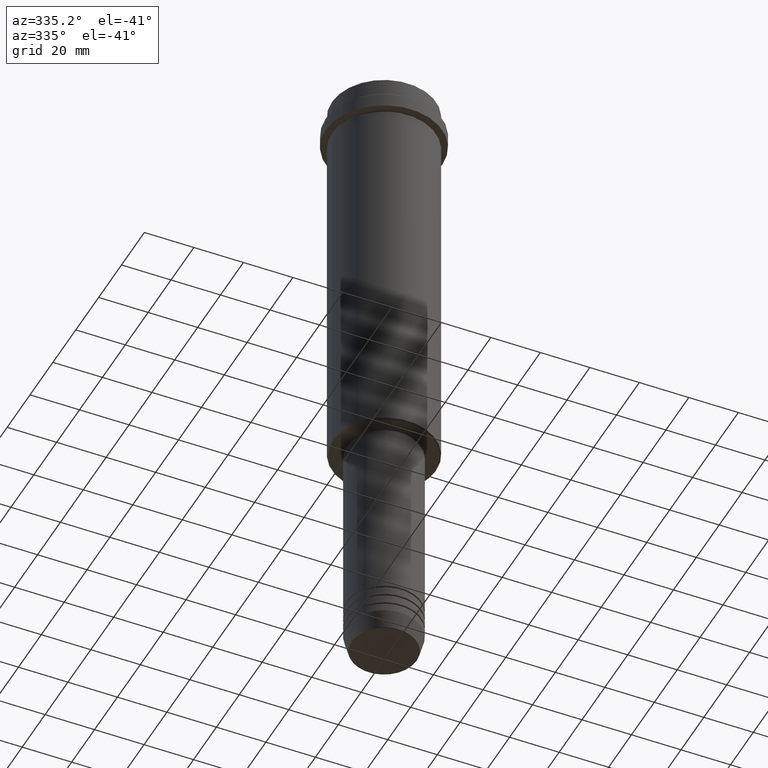
[diagram: clean part render]
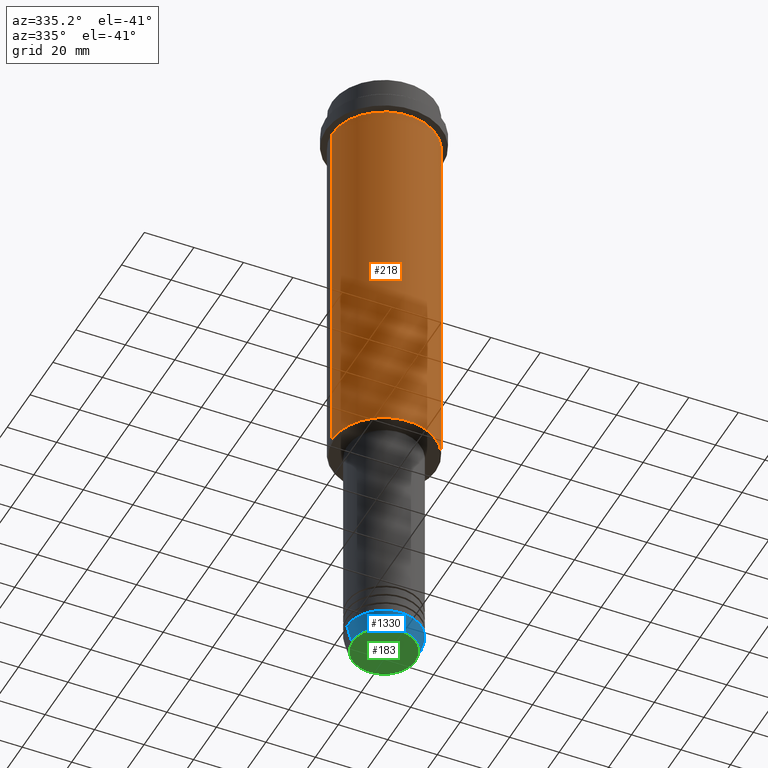
[diagram: same view with three faces highlighted in distinct colors, each labeled with its STEP entity id]
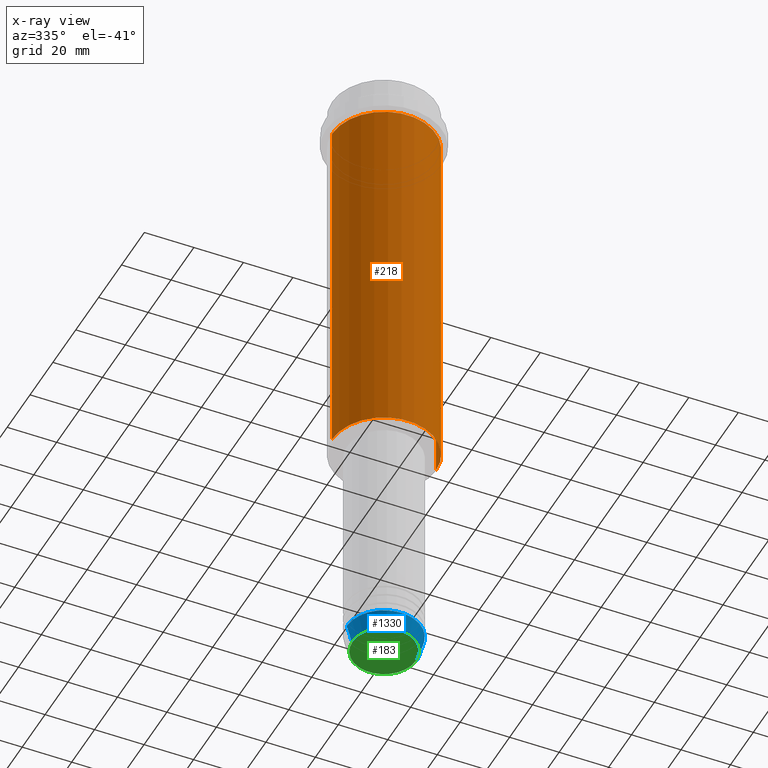
[diagram: x-ray of the same camera — body ghosted, the three highlighted faces saturated]
A machine part, auxiliary view with three faces highlighted in distinct colors.
The next image is the same camera in x-ray (body ghosted, the three faces saturated) — at least one of them is partly hidden behind the body in this view.
Their STEP definitions:

[orange] entity #218 — the highlighted cylindrical surface (partial cylindrical patch) has radius 21 mm, axis along (-0, -0, 1).
#16 = AXIS2_PLACEMENT_3D ( 'NONE', #1121, #705, #1228 ) ;
#28 = CARTESIAN_POINT ( 'NONE',  ( 0.000000000000000000, 0.000000000000000000, -16.00000000000000355 ) ) ;
#94 = ORIENTED_EDGE ( 'NONE', *, *, #1371, .T. ) ;
#137 = CARTESIAN_POINT ( 'NONE',  ( 20.99999999999999645, 0.000000000000000000, -16.00000000000000355 ) ) ;
#218 = ADVANCED_FACE ( 'NONE', ( #570 ), #1003, .T. ) ;
#247 = DIRECTION ( 'NONE',  ( -0.000000000000000000, -0.000000000000000000, 1.000000000000000000 ) ) ;
#287 = EDGE_CURVE ( 'NONE', #1183, #753, #288, .T. ) ;
#288 = CIRCLE ( 'NONE', #757, 20.99999999999999645 ) ;
#306 = LINE ( 'NONE', #730, #568 ) ;
#334 = ORIENTED_EDGE ( 'NONE', *, *, #1323, .T. ) ;
#362 = CARTESIAN_POINT ( 'NONE',  ( 20.99999999999999645, 0.000000000000000000, 0.000000000000000000 ) ) ;
#529 = ORIENTED_EDGE ( 'NONE', *, *, #287, .F. ) ;
#568 = VECTOR ( 'NONE', #968, 1000.000000000000000 ) ;
#570 = FACE_OUTER_BOUND ( 'NONE', #751, .T. ) ;
#581 = DIRECTION ( 'NONE',  ( -0.000000000000000000, -0.000000000000000000, 1.000000000000000000 ) ) ;
#592 = CIRCLE ( 'NONE', #16, 20.99999999999999645 ) ;
#609 = LINE ( 'NONE', #362, #1062 ) ;
#668 = CARTESIAN_POINT ( 'NONE',  ( 0.000000000000000000, 0.000000000000000000, 0.000000000000000000 ) ) ;
#689 = DIRECTION ( 'NONE',  ( 1.000000000000000000, 0.000000000000000000, 0.000000000000000000 ) ) ;
#705 = DIRECTION ( 'NONE',  ( -0.000000000000000000, -0.000000000000000000, 1.000000000000000000 ) ) ;
#730 = CARTESIAN_POINT ( 'NONE',  ( -20.99999999999999645, 2.571758278209441267E-15, 0.000000000000000000 ) ) ;
#751 = EDGE_LOOP ( 'NONE', ( #1400, #94, #334, #529 ) ) ;
#753 = VERTEX_POINT ( 'NONE', #137 ) ;
#757 = AXIS2_PLACEMENT_3D ( 'NONE', #28, #247, #1012 ) ;
#787 = CARTESIAN_POINT ( 'NONE',  ( -20.99999999999999645, 2.571758278209441267E-15, -16.00000000000000355 ) ) ;
#804 = CARTESIAN_POINT ( 'NONE',  ( 20.99999999999999645, 0.000000000000000000, -164.5000000000000284 ) ) ;
#828 = VERTEX_POINT ( 'NONE', #804 ) ;
#880 = DIRECTION ( 'NONE',  ( -0.000000000000000000, -0.000000000000000000, 1.000000000000000000 ) ) ;
#918 = CARTESIAN_POINT ( 'NONE',  ( -20.99999999999999645, 2.571758278209441267E-15, -164.5000000000000284 ) ) ;
#968 = DIRECTION ( 'NONE',  ( -0.000000000000000000, -0.000000000000000000, 1.000000000000000000 ) ) ;
#1003 = CYLINDRICAL_SURFACE ( 'NONE', #1317, 20.99999999999999645 ) ;
#1012 = DIRECTION ( 'NONE',  ( 1.000000000000000000, 0.000000000000000000, 0.000000000000000000 ) ) ;
#1013 = EDGE_CURVE ( 'NONE', #1287, #1183, #306, .T. ) ;
#1062 = VECTOR ( 'NONE', #581, 1000.000000000000000 ) ;
#1121 = CARTESIAN_POINT ( 'NONE',  ( 0.000000000000000000, 0.000000000000000000, -164.5000000000000284 ) ) ;
#1183 = VERTEX_POINT ( 'NONE', #787 ) ;
#1228 = DIRECTION ( 'NONE',  ( -1.000000000000000000, 0.000000000000000000, 0.000000000000000000 ) ) ;
#1287 = VERTEX_POINT ( 'NONE', #918 ) ;
#1317 = AXIS2_PLACEMENT_3D ( 'NONE', #668, #880, #689 ) ;
#1323 = EDGE_CURVE ( 'NONE', #828, #753, #609, .T. ) ;
#1371 = EDGE_CURVE ( 'NONE', #1287, #828, #592, .T. ) ;
#1400 = ORIENTED_EDGE ( 'NONE', *, *, #1013, .F. ) ;

[blue] entity #1330 — the highlighted conical surface has half-angle 15 deg.
#30 = ORIENTED_EDGE ( 'NONE', *, *, #202, .T. ) ;
#60 = CONICAL_SURFACE ( 'NONE', #265, 15.00000000000000000, 0.2617993877991500740 ) ;
#90 = CARTESIAN_POINT ( 'NONE',  ( 0.000000000000000000, 0.000000000000000000, -253.0000000000000000 ) ) ;
#107 = AXIS2_PLACEMENT_3D ( 'NONE', #651, #1160, #978 ) ;
#194 = AXIS2_PLACEMENT_3D ( 'NONE', #90, #1286, #280 ) ;
#202 = EDGE_CURVE ( 'NONE', #539, #388, #1338, .T. ) ;
#238 = LINE ( 'NONE', #579, #865 ) ;
#263 = DIRECTION ( 'NONE',  ( -0.000000000000000000, -0.000000000000000000, 1.000000000000000000 ) ) ;
#265 = AXIS2_PLACEMENT_3D ( 'NONE', #810, #263, #379 ) ;
#269 = CARTESIAN_POINT ( 'NONE',  ( 13.22365507213718772, 0.000000000000000000, -259.6294095225513274 ) ) ;
#280 = DIRECTION ( 'NONE',  ( 1.000000000000000000, 0.000000000000000000, 0.000000000000000000 ) ) ;
#325 = EDGE_CURVE ( 'NONE', #539, #938, #238, .T. ) ;
#379 = DIRECTION ( 'NONE',  ( 1.000000000000000000, 0.000000000000000000, 0.000000000000000000 ) ) ;
#388 = VERTEX_POINT ( 'NONE', #269 ) ;
#408 = VERTEX_POINT ( 'NONE', #1127 ) ;
#466 = DIRECTION ( 'NONE',  ( -0.2588190451025213501, 3.169619151431772337E-17, 0.9659258262890680902 ) ) ;
#516 = CARTESIAN_POINT ( 'NONE',  ( -13.22365507213718772, 1.728200442216588386E-15, -259.6294095225513274 ) ) ;
#539 = VERTEX_POINT ( 'NONE', #516 ) ;
#579 = CARTESIAN_POINT ( 'NONE',  ( -15.00000000000000000, 1.836970198721029589E-15, -253.0000000000000000 ) ) ;
#590 = CIRCLE ( 'NONE', #194, 15.00000000000000000 ) ;
#597 = DIRECTION ( 'NONE',  ( 0.2588190451025213501, 0.000000000000000000, 0.9659258262890680902 ) ) ;
#651 = CARTESIAN_POINT ( 'NONE',  ( 0.000000000000000000, 0.000000000000000000, -259.6294095225513274 ) ) ;
#696 = CARTESIAN_POINT ( 'NONE',  ( 15.00000000000000000, 0.000000000000000000, -253.0000000000000000 ) ) ;
#712 = ORIENTED_EDGE ( 'NONE', *, *, #325, .F. ) ;
#810 = CARTESIAN_POINT ( 'NONE',  ( 0.000000000000000000, 0.000000000000000000, -253.0000000000000000 ) ) ;
#865 = VECTOR ( 'NONE', #466, 1000.000000000000000 ) ;
#914 = FACE_OUTER_BOUND ( 'NONE', #1248, .T. ) ;
#916 = CARTESIAN_POINT ( 'NONE',  ( -15.00000000000000000, 1.836970198721029589E-15, -253.0000000000000000 ) ) ;
#938 = VERTEX_POINT ( 'NONE', #916 ) ;
#978 = DIRECTION ( 'NONE',  ( 1.000000000000000000, 0.000000000000000000, 0.000000000000000000 ) ) ;
#980 = EDGE_CURVE ( 'NONE', #938, #408, #590, .T. ) ;
#1046 = ORIENTED_EDGE ( 'NONE', *, *, #980, .F. ) ;
#1127 = CARTESIAN_POINT ( 'NONE',  ( 15.00000000000000000, 0.000000000000000000, -253.0000000000000000 ) ) ;
#1160 = DIRECTION ( 'NONE',  ( -0.000000000000000000, -0.000000000000000000, 1.000000000000000000 ) ) ;
#1199 = ORIENTED_EDGE ( 'NONE', *, *, #1274, .T. ) ;
#1245 = VECTOR ( 'NONE', #597, 1000.000000000000000 ) ;
#1248 = EDGE_LOOP ( 'NONE', ( #712, #30, #1199, #1046 ) ) ;
#1274 = EDGE_CURVE ( 'NONE', #388, #408, #1349, .T. ) ;
#1286 = DIRECTION ( 'NONE',  ( -0.000000000000000000, -0.000000000000000000, 1.000000000000000000 ) ) ;
#1330 = ADVANCED_FACE ( 'NONE', ( #914 ), #60, .T. ) ;
#1338 = CIRCLE ( 'NONE', #107, 13.22365507213718772 ) ;
#1349 = LINE ( 'NONE', #696, #1245 ) ;

[green] entity #183 — the highlighted planar face has unit normal (0, -0, 1).
#91 = CARTESIAN_POINT ( 'NONE',  ( 0.000000000000000000, 0.000000000000000000, -260.0000000000000000 ) ) ;
#99 = EDGE_LOOP ( 'NONE', ( #953, #709 ) ) ;
#108 = AXIS2_PLACEMENT_3D ( 'NONE', #91, #1166, #732 ) ;
#176 = CARTESIAN_POINT ( 'NONE',  ( 12.74069215899265828, 0.000000000000000000, -260.0000000000000000 ) ) ;
#183 = ADVANCED_FACE ( 'NONE', ( #428 ), #1177, .F. ) ;
#222 = AXIS2_PLACEMENT_3D ( 'NONE', #1109, #789, #673 ) ;
#292 = EDGE_CURVE ( 'NONE', #1261, #372, #1295, .T. ) ;
#346 = CARTESIAN_POINT ( 'NONE',  ( -12.74069215899265828, 1.589857736427680246E-15, -260.0000000000000000 ) ) ;
#372 = VERTEX_POINT ( 'NONE', #176 ) ;
#428 = FACE_OUTER_BOUND ( 'NONE', #99, .T. ) ;
#521 = EDGE_CURVE ( 'NONE', #372, #1261, #1341, .T. ) ;
#527 = DIRECTION ( 'NONE',  ( 1.000000000000000000, 0.000000000000000000, 0.000000000000000000 ) ) ;
#547 = DIRECTION ( 'NONE',  ( 0.000000000000000000, -0.000000000000000000, 1.000000000000000000 ) ) ;
#628 = CARTESIAN_POINT ( 'NONE',  ( 0.000000000000000000, 0.000000000000000000, -260.0000000000000000 ) ) ;
#673 = DIRECTION ( 'NONE',  ( 1.000000000000000000, 0.000000000000000000, 0.000000000000000000 ) ) ;
#709 = ORIENTED_EDGE ( 'NONE', *, *, #292, .T. ) ;
#732 = DIRECTION ( 'NONE',  ( 1.000000000000000000, 0.000000000000000000, 0.000000000000000000 ) ) ;
#789 = DIRECTION ( 'NONE',  ( 0.000000000000000000, 0.000000000000000000, -1.000000000000000000 ) ) ;
#953 = ORIENTED_EDGE ( 'NONE', *, *, #521, .T. ) ;
#1042 = AXIS2_PLACEMENT_3D ( 'NONE', #628, #547, #527 ) ;
#1109 = CARTESIAN_POINT ( 'NONE',  ( 0.000000000000000000, 0.000000000000000000, -260.0000000000000000 ) ) ;
#1166 = DIRECTION ( 'NONE',  ( 0.000000000000000000, 0.000000000000000000, -1.000000000000000000 ) ) ;
#1177 = PLANE ( 'NONE',  #1042 ) ;
#1261 = VERTEX_POINT ( 'NONE', #346 ) ;
#1295 = CIRCLE ( 'NONE', #222, 12.74069215899265828 ) ;
#1341 = CIRCLE ( 'NONE', #108, 12.74069215899265828 ) ;